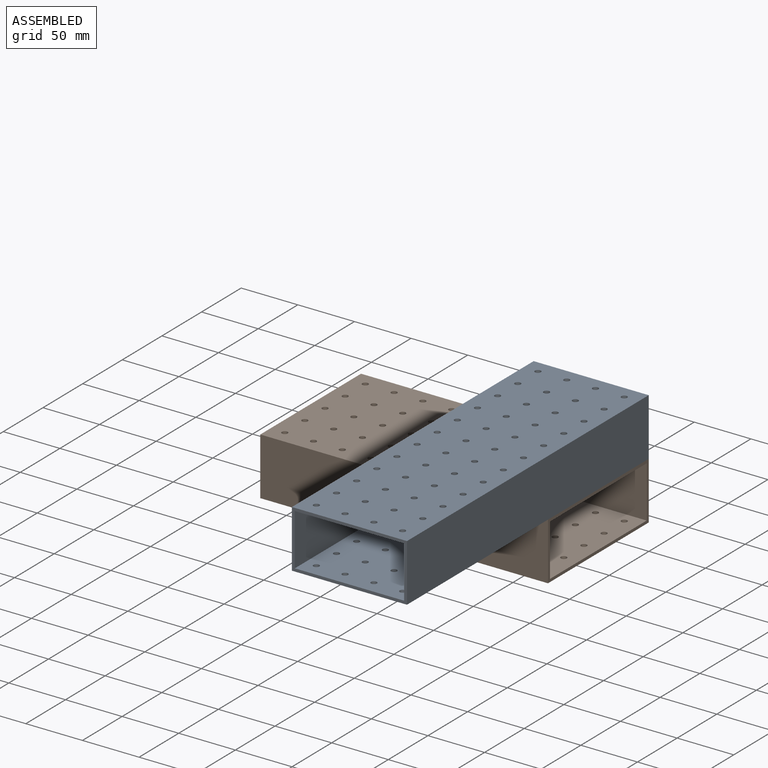
[diagram: assembled view]
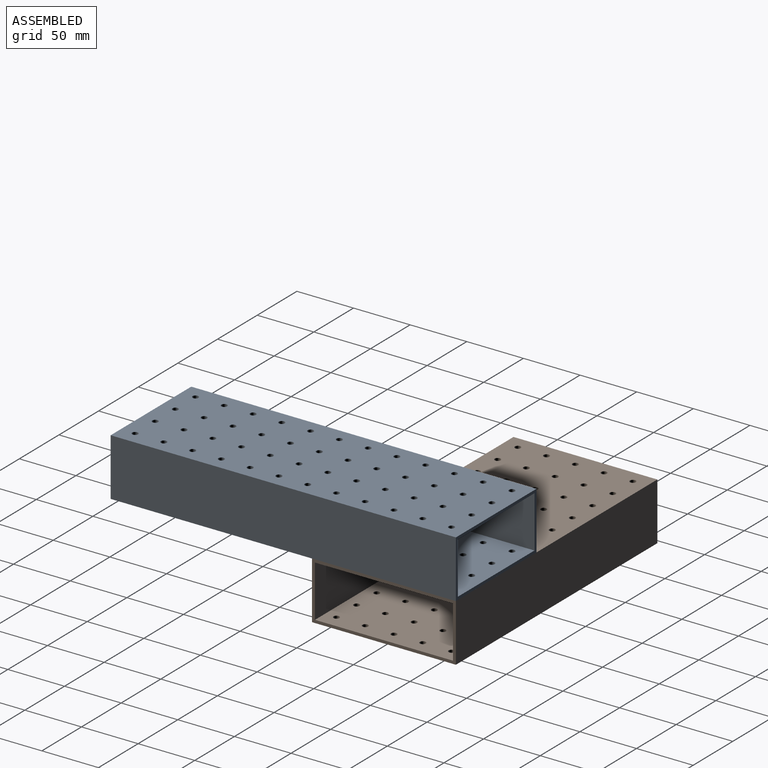
[diagram: assembled view, second angle]
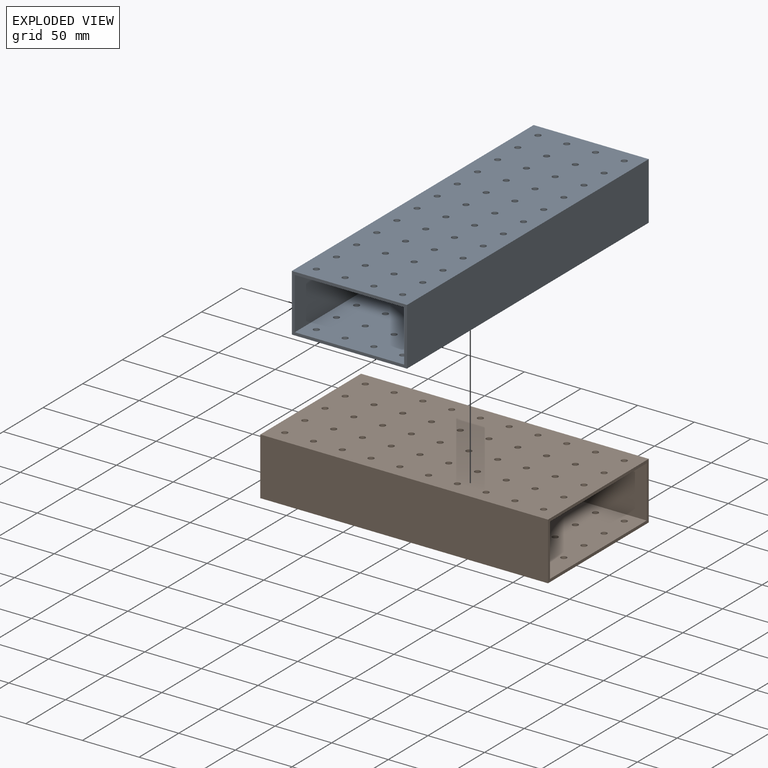
[diagram: exploded view]
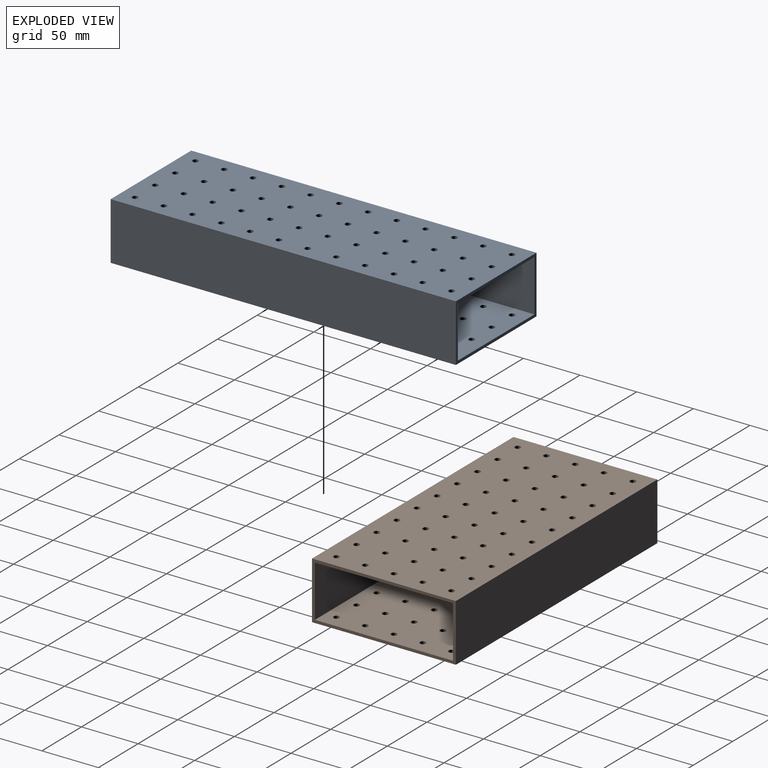
[diagram: exploded view, second angle]
ASSEMBLY  parts=2 mates=3
PART A: 106 faces, bbox 304.8x101.6x50.8 mm
  f0: plane 101.6x50.8mm, normal (-1,0,0), area 748.4mm2, adj f1,f3,f4,f5,f6,f7,f8,f9
  f1: plane 304.8x50.8mm, normal (0,-1,0), area 15483.8mm2, adj f0,f2,f4,f5
  f2: plane 101.6x50.8mm, normal (1,0,0), area 748.4mm2, adj f1,f3,f4,f5,f6,f7,f8,f9
  f3: plane 304.8x50.8mm, normal (0,1,0), area 15483.8mm2, adj f0,f2,f4,f5
  f4: plane 304.8x101.6mm, normal (0,0,1), area 29985mm2, adj f0,f1,f2,f3,f10,f12,f14,f16
  f5: plane 304.8x101.6mm, normal (0,0,-1), area 29985mm2, adj f0,f1,f2,f3,f11,f13,f15,f17
  f6: plane 304.8x45.72mm, normal (0,-1,0), area 13935.5mm2, adj f0,f2,f7,f9
  f7: plane 304.8x96.52mm, normal (0,0,1), area 28436.7mm2, adj f0,f2,f6,f8,f11,f13,f15,f17
  f8: plane 304.8x45.72mm, normal (0,1,0), area 13935.5mm2, adj f0,f2,f7,f9
  f9: plane 304.8x96.52mm, normal (0,0,-1), area 28436.7mm2, adj f0,f2,f6,f8,f10,f12,f14,f16
  f10: cylinder r=2.55mm len=5.11mm, axis (0,0,1), area 40.7mm2, adj f4,f9
  f11: cylinder r=2.55mm len=5.11mm, axis (0,0,1), area 40.7mm2, adj f5,f7
  f12: cylinder r=2.55mm len=5.11mm, axis (0,0,1), area 40.7mm2, adj f4,f9
  f13: cylinder r=2.55mm len=5.11mm, axis (0,0,1), area 40.7mm2, adj f5,f7
  f14: cylinder r=2.55mm len=5.11mm, axis (0,0,1), area 40.7mm2, adj f4,f9
  f15: cylinder r=2.55mm len=5.11mm, axis (0,0,1), area 40.7mm2, adj f5,f7
  f16: cylinder r=2.55mm len=5.11mm, axis (0,0,1), area 40.7mm2, adj f4,f9
  f17: cylinder r=2.55mm len=5.11mm, axis (0,0,1), area 40.7mm2, adj f5,f7
  f18: cylinder r=2.55mm len=5.11mm, axis (0,0,1), area 40.7mm2, adj f4,f9
  f19: cylinder r=2.55mm len=5.11mm, axis (0,0,1), area 40.7mm2, adj f5,f7
  f20: cylinder r=2.55mm len=5.11mm, axis (0,0,1), area 40.7mm2, adj f4,f9
  f21: cylinder r=2.55mm len=5.11mm, axis (0,0,1), area 40.7mm2, adj f5,f7
  f22: cylinder r=2.55mm len=5.11mm, axis (0,0,1), area 40.7mm2, adj f4,f9
  f23: cylinder r=2.55mm len=5.11mm, axis (0,0,1), area 40.7mm2, adj f5,f7
  f24: cylinder r=2.55mm len=5.11mm, axis (0,0,1), area 40.7mm2, adj f4,f9
  f25: cylinder r=2.55mm len=5.11mm, axis (0,0,1), area 40.7mm2, adj f5,f7
  f26: cylinder r=2.55mm len=5.11mm, axis (0,0,1), area 40.7mm2, adj f4,f9
  f27: cylinder r=2.55mm len=5.11mm, axis (0,0,1), area 40.7mm2, adj f5,f7
  f28: cylinder r=2.55mm len=5.11mm, axis (0,0,1), area 40.7mm2, adj f4,f9
  f29: cylinder r=2.55mm len=5.11mm, axis (0,0,1), area 40.7mm2, adj f5,f7
  f30: cylinder r=2.55mm len=5.11mm, axis (0,0,1), area 40.7mm2, adj f4,f9
  f31: cylinder r=2.55mm len=5.11mm, axis (0,0,1), area 40.7mm2, adj f5,f7
  f32: cylinder r=2.55mm len=5.11mm, axis (0,0,1), area 40.7mm2, adj f4,f9
  f33: cylinder r=2.55mm len=5.11mm, axis (0,0,1), area 40.7mm2, adj f5,f7
  f34: cylinder r=2.55mm len=5.11mm, axis (0,0,1), area 40.7mm2, adj f4,f9
  f35: cylinder r=2.55mm len=5.11mm, axis (0,0,1), area 40.7mm2, adj f5,f7
  f36: cylinder r=2.55mm len=5.11mm, axis (0,0,1), area 40.7mm2, adj f4,f9
  f37: cylinder r=2.55mm len=5.11mm, axis (0,0,1), area 40.7mm2, adj f5,f7
  f38: cylinder r=2.55mm len=5.11mm, axis (0,0,1), area 40.7mm2, adj f4,f9
  f39: cylinder r=2.55mm len=5.11mm, axis (0,0,1), area 40.7mm2, adj f5,f7
  f40: cylinder r=2.55mm len=5.11mm, axis (0,0,1), area 40.7mm2, adj f4,f9
  f41: cylinder r=2.55mm len=5.11mm, axis (0,0,1), area 40.7mm2, adj f5,f7
  f42: cylinder r=2.55mm len=5.11mm, axis (0,0,1), area 40.7mm2, adj f4,f9
  f43: cylinder r=2.55mm len=5.11mm, axis (0,0,1), area 40.7mm2, adj f5,f7
  f44: cylinder r=2.55mm len=5.11mm, axis (0,0,1), area 40.7mm2, adj f4,f9
  f45: cylinder r=2.55mm len=5.11mm, axis (0,0,1), area 40.7mm2, adj f5,f7
  f46: cylinder r=2.55mm len=5.11mm, axis (0,0,1), area 40.7mm2, adj f4,f9
  f47: cylinder r=2.55mm len=5.11mm, axis (0,0,1), area 40.7mm2, adj f5,f7
  f48: cylinder r=2.55mm len=5.11mm, axis (0,0,1), area 40.7mm2, adj f4,f9
  f49: cylinder r=2.55mm len=5.11mm, axis (0,0,1), area 40.7mm2, adj f5,f7
  f50: cylinder r=2.55mm len=5.11mm, axis (0,0,1), area 40.7mm2, adj f4,f9
  f51: cylinder r=2.55mm len=5.11mm, axis (0,0,1), area 40.7mm2, adj f5,f7
  f52: cylinder r=2.55mm len=5.11mm, axis (0,0,1), area 40.7mm2, adj f4,f9
  f53: cylinder r=2.55mm len=5.11mm, axis (0,0,1), area 40.7mm2, adj f5,f7
  f54: cylinder r=2.55mm len=5.11mm, axis (0,0,1), area 40.7mm2, adj f4,f9
  f55: cylinder r=2.55mm len=5.11mm, axis (0,0,1), area 40.7mm2, adj f5,f7
  f56: cylinder r=2.55mm len=5.11mm, axis (0,0,1), area 40.7mm2, adj f4,f9
  f57: cylinder r=2.55mm len=5.11mm, axis (0,0,1), area 40.7mm2, adj f5,f7
  f58: cylinder r=2.55mm len=5.11mm, axis (0,0,1), area 40.7mm2, adj f4,f9
  f59: cylinder r=2.55mm len=5.11mm, axis (0,0,1), area 40.7mm2, adj f5,f7
  f60: cylinder r=2.55mm len=5.11mm, axis (0,0,1), area 40.7mm2, adj f4,f9
  f61: cylinder r=2.55mm len=5.11mm, axis (0,0,1), area 40.7mm2, adj f5,f7
  f62: cylinder r=2.55mm len=5.11mm, axis (0,0,1), area 40.7mm2, adj f4,f9
  f63: cylinder r=2.55mm len=5.11mm, axis (0,0,1), area 40.7mm2, adj f5,f7
  f64: cylinder r=2.55mm len=5.11mm, axis (0,0,1), area 40.7mm2, adj f4,f9
  f65: cylinder r=2.55mm len=5.11mm, axis (0,0,1), area 40.7mm2, adj f5,f7
  f66: cylinder r=2.55mm len=5.11mm, axis (0,0,1), area 40.7mm2, adj f4,f9
  f67: cylinder r=2.55mm len=5.11mm, axis (0,0,1), area 40.7mm2, adj f5,f7
  f68: cylinder r=2.55mm len=5.11mm, axis (0,0,1), area 40.7mm2, adj f4,f9
  f69: cylinder r=2.55mm len=5.11mm, axis (0,0,1), area 40.7mm2, adj f5,f7
  f70: cylinder r=2.55mm len=5.11mm, axis (0,0,1), area 40.7mm2, adj f4,f9
  f71: cylinder r=2.55mm len=5.11mm, axis (0,0,1), area 40.7mm2, adj f5,f7
  f72: cylinder r=2.55mm len=5.11mm, axis (0,0,1), area 40.7mm2, adj f4,f9
  f73: cylinder r=2.55mm len=5.11mm, axis (0,0,1), area 40.7mm2, adj f5,f7
  f74: cylinder r=2.55mm len=5.11mm, axis (0,0,1), area 40.7mm2, adj f4,f9
  f75: cylinder r=2.55mm len=5.11mm, axis (0,0,1), area 40.7mm2, adj f5,f7
  f76: cylinder r=2.55mm len=5.11mm, axis (0,0,1), area 40.7mm2, adj f4,f9
  f77: cylinder r=2.55mm len=5.11mm, axis (0,0,1), area 40.7mm2, adj f5,f7
  f78: cylinder r=2.55mm len=5.11mm, axis (0,0,1), area 40.7mm2, adj f4,f9
  f79: cylinder r=2.55mm len=5.11mm, axis (0,0,1), area 40.7mm2, adj f5,f7
  f80: cylinder r=2.55mm len=5.11mm, axis (0,0,1), area 40.7mm2, adj f4,f9
  f81: cylinder r=2.55mm len=5.11mm, axis (0,0,1), area 40.7mm2, adj f5,f7
  f82: cylinder r=2.55mm len=5.11mm, axis (0,0,1), area 40.7mm2, adj f4,f9
  f83: cylinder r=2.55mm len=5.11mm, axis (0,0,1), area 40.7mm2, adj f5,f7
  f84: cylinder r=2.55mm len=5.11mm, axis (0,0,1), area 40.7mm2, adj f4,f9
  f85: cylinder r=2.55mm len=5.11mm, axis (0,0,1), area 40.7mm2, adj f5,f7
  f86: cylinder r=2.55mm len=5.11mm, axis (0,0,1), area 40.7mm2, adj f4,f9
  f87: cylinder r=2.55mm len=5.11mm, axis (0,0,1), area 40.7mm2, adj f5,f7
  f88: cylinder r=2.55mm len=5.11mm, axis (0,0,1), area 40.7mm2, adj f4,f9
  f89: cylinder r=2.55mm len=5.11mm, axis (0,0,1), area 40.7mm2, adj f5,f7
  f90: cylinder r=2.55mm len=5.11mm, axis (0,0,1), area 40.7mm2, adj f4,f9
  f91: cylinder r=2.55mm len=5.11mm, axis (0,0,1), area 40.7mm2, adj f5,f7
  f92: cylinder r=2.55mm len=5.11mm, axis (0,0,1), area 40.7mm2, adj f4,f9
  f93: cylinder r=2.55mm len=5.11mm, axis (0,0,1), area 40.7mm2, adj f5,f7
  f94: cylinder r=2.55mm len=5.11mm, axis (0,0,1), area 40.7mm2, adj f4,f9
  f95: cylinder r=2.55mm len=5.11mm, axis (0,0,1), area 40.7mm2, adj f5,f7
  f96: cylinder r=2.55mm len=5.11mm, axis (0,0,1), area 40.7mm2, adj f4,f9
  f97: cylinder r=2.55mm len=5.11mm, axis (0,0,1), area 40.7mm2, adj f5,f7
  f98: cylinder r=2.55mm len=5.11mm, axis (0,0,1), area 40.7mm2, adj f4,f9
  f99: cylinder r=2.55mm len=5.11mm, axis (0,0,1), area 40.7mm2, adj f5,f7
  f100: cylinder r=2.55mm len=5.11mm, axis (0,0,1), area 40.7mm2, adj f4,f9
  f101: cylinder r=2.55mm len=5.11mm, axis (0,0,1), area 40.7mm2, adj f5,f7
  f102: cylinder r=2.55mm len=5.11mm, axis (0,0,1), area 40.7mm2, adj f4,f9
  f103: cylinder r=2.55mm len=5.11mm, axis (0,0,1), area 40.7mm2, adj f5,f7
  f104: cylinder r=2.55mm len=5.11mm, axis (0,0,1), area 40.7mm2, adj f4,f9
  f105: cylinder r=2.55mm len=5.11mm, axis (0,0,1), area 40.7mm2, adj f5,f7
PART B: 110 faces, bbox 254x127x50.8 mm
  f0: plane 127x50.8mm, normal (-1,0,0), area 877.4mm2, adj f1,f3,f4,f5,f6,f7,f8,f9
  f1: plane 254x50.8mm, normal (0,-1,0), area 12903.2mm2, adj f0,f2,f4,f5
  f2: plane 127x50.8mm, normal (1,0,0), area 877.4mm2, adj f1,f3,f4,f5,f6,f7,f8,f9
  f3: plane 254x50.8mm, normal (0,1,0), area 12903.2mm2, adj f0,f2,f4,f5
  f4: plane 254x127mm, normal (0,0,1), area 31234.4mm2, adj f0,f1,f2,f3,f10,f12,f14,f16
  f5: plane 254x127mm, normal (0,0,-1), area 31234.4mm2, adj f0,f1,f2,f3,f11,f13,f15,f17
  f6: plane 254x45.72mm, normal (0,1,0), area 11612.9mm2, adj f0,f2,f7,f9
  f7: plane 254x121.92mm, normal (0,0,1), area 29944.1mm2, adj f0,f2,f6,f8,f11,f13,f15,f17
  f8: plane 254x45.72mm, normal (0,-1,0), area 11612.9mm2, adj f0,f2,f7,f9
  f9: plane 254x121.92mm, normal (0,0,-1), area 29944.1mm2, adj f0,f2,f6,f8,f10,f12,f14,f16
  f10: cylinder r=2.55mm len=5.11mm, axis (0,0,1), area 40.7mm2, adj f4,f9
  f11: cylinder r=2.55mm len=5.11mm, axis (0,0,1), area 40.7mm2, adj f5,f7
  f12: cylinder r=2.55mm len=5.11mm, axis (0,0,1), area 40.7mm2, adj f4,f9
  f13: cylinder r=2.55mm len=5.11mm, axis (0,0,1), area 40.7mm2, adj f5,f7
  f14: cylinder r=2.55mm len=5.11mm, axis (0,0,1), area 40.7mm2, adj f4,f9
  f15: cylinder r=2.55mm len=5.11mm, axis (0,0,1), area 40.7mm2, adj f5,f7
  f16: cylinder r=2.55mm len=5.11mm, axis (0,0,1), area 40.7mm2, adj f4,f9
  f17: cylinder r=2.55mm len=5.11mm, axis (0,0,1), area 40.7mm2, adj f5,f7
  f18: cylinder r=2.55mm len=5.11mm, axis (0,0,1), area 40.7mm2, adj f4,f9
  f19: cylinder r=2.55mm len=5.11mm, axis (0,0,1), area 40.7mm2, adj f5,f7
  f20: cylinder r=2.55mm len=5.11mm, axis (0,0,1), area 40.7mm2, adj f4,f9
  f21: cylinder r=2.55mm len=5.11mm, axis (0,0,1), area 40.7mm2, adj f5,f7
  f22: cylinder r=2.55mm len=5.11mm, axis (0,0,1), area 40.7mm2, adj f4,f9
  f23: cylinder r=2.55mm len=5.11mm, axis (0,0,1), area 40.7mm2, adj f5,f7
  f24: cylinder r=2.55mm len=5.11mm, axis (0,0,1), area 40.7mm2, adj f4,f9
  f25: cylinder r=2.55mm len=5.11mm, axis (0,0,1), area 40.7mm2, adj f5,f7
  f26: cylinder r=2.55mm len=5.11mm, axis (0,0,1), area 40.7mm2, adj f4,f9
  f27: cylinder r=2.55mm len=5.11mm, axis (0,0,1), area 40.7mm2, adj f5,f7
  f28: cylinder r=2.55mm len=5.11mm, axis (0,0,1), area 40.7mm2, adj f4,f9
  f29: cylinder r=2.55mm len=5.11mm, axis (0,0,1), area 40.7mm2, adj f5,f7
  f30: cylinder r=2.55mm len=5.11mm, axis (0,0,1), area 40.7mm2, adj f4,f9
  f31: cylinder r=2.55mm len=5.11mm, axis (0,0,1), area 40.7mm2, adj f5,f7
  f32: cylinder r=2.55mm len=5.11mm, axis (0,0,1), area 40.7mm2, adj f4,f9
  f33: cylinder r=2.55mm len=5.11mm, axis (0,0,1), area 40.7mm2, adj f5,f7
  f34: cylinder r=2.55mm len=5.11mm, axis (0,0,1), area 40.7mm2, adj f4,f9
  f35: cylinder r=2.55mm len=5.11mm, axis (0,0,1), area 40.7mm2, adj f5,f7
  f36: cylinder r=2.55mm len=5.11mm, axis (0,0,1), area 40.7mm2, adj f4,f9
  f37: cylinder r=2.55mm len=5.11mm, axis (0,0,1), area 40.7mm2, adj f5,f7
  f38: cylinder r=2.55mm len=5.11mm, axis (0,0,1), area 40.7mm2, adj f4,f9
  f39: cylinder r=2.55mm len=5.11mm, axis (0,0,1), area 40.7mm2, adj f5,f7
  f40: cylinder r=2.55mm len=5.11mm, axis (0,0,1), area 40.7mm2, adj f4,f9
  f41: cylinder r=2.55mm len=5.11mm, axis (0,0,1), area 40.7mm2, adj f5,f7
  f42: cylinder r=2.55mm len=5.11mm, axis (0,0,1), area 40.7mm2, adj f4,f9
  f43: cylinder r=2.55mm len=5.11mm, axis (0,0,1), area 40.7mm2, adj f5,f7
  f44: cylinder r=2.55mm len=5.11mm, axis (0,0,1), area 40.7mm2, adj f4,f9
  f45: cylinder r=2.55mm len=5.11mm, axis (0,0,1), area 40.7mm2, adj f5,f7
  f46: cylinder r=2.55mm len=5.11mm, axis (0,0,1), area 40.7mm2, adj f4,f9
  f47: cylinder r=2.55mm len=5.11mm, axis (0,0,1), area 40.7mm2, adj f5,f7
  f48: cylinder r=2.55mm len=5.11mm, axis (0,0,1), area 40.7mm2, adj f4,f9
  f49: cylinder r=2.55mm len=5.11mm, axis (0,0,1), area 40.7mm2, adj f5,f7
  f50: cylinder r=2.55mm len=5.11mm, axis (0,0,1), area 40.7mm2, adj f4,f9
  f51: cylinder r=2.55mm len=5.11mm, axis (0,0,1), area 40.7mm2, adj f5,f7
  f52: cylinder r=2.55mm len=5.11mm, axis (0,0,1), area 40.7mm2, adj f4,f9
  f53: cylinder r=2.55mm len=5.11mm, axis (0,0,1), area 40.7mm2, adj f5,f7
  f54: cylinder r=2.55mm len=5.11mm, axis (0,0,1), area 40.7mm2, adj f4,f9
  f55: cylinder r=2.55mm len=5.11mm, axis (0,0,1), area 40.7mm2, adj f5,f7
  f56: cylinder r=2.55mm len=5.11mm, axis (0,0,1), area 40.7mm2, adj f4,f9
  f57: cylinder r=2.55mm len=5.11mm, axis (0,0,1), area 40.7mm2, adj f5,f7
  f58: cylinder r=2.55mm len=5.11mm, axis (0,0,1), area 40.7mm2, adj f4,f9
  f59: cylinder r=2.55mm len=5.11mm, axis (0,0,1), area 40.7mm2, adj f5,f7
  f60: cylinder r=2.55mm len=5.11mm, axis (0,0,1), area 40.7mm2, adj f4,f9
  f61: cylinder r=2.55mm len=5.11mm, axis (0,0,1), area 40.7mm2, adj f5,f7
  f62: cylinder r=2.55mm len=5.11mm, axis (0,0,1), area 40.7mm2, adj f4,f9
  f63: cylinder r=2.55mm len=5.11mm, axis (0,0,1), area 40.7mm2, adj f5,f7
  f64: cylinder r=2.55mm len=5.11mm, axis (0,0,1), area 40.7mm2, adj f4,f9
  f65: cylinder r=2.55mm len=5.11mm, axis (0,0,1), area 40.7mm2, adj f5,f7
  f66: cylinder r=2.55mm len=5.11mm, axis (0,0,1), area 40.7mm2, adj f4,f9
  f67: cylinder r=2.55mm len=5.11mm, axis (0,0,1), area 40.7mm2, adj f5,f7
  f68: cylinder r=2.55mm len=5.11mm, axis (0,0,1), area 40.7mm2, adj f4,f9
  f69: cylinder r=2.55mm len=5.11mm, axis (0,0,1), area 40.7mm2, adj f5,f7
  f70: cylinder r=2.55mm len=5.11mm, axis (0,0,1), area 40.7mm2, adj f4,f9
  f71: cylinder r=2.55mm len=5.11mm, axis (0,0,1), area 40.7mm2, adj f5,f7
  f72: cylinder r=2.55mm len=5.11mm, axis (0,0,1), area 40.7mm2, adj f4,f9
  f73: cylinder r=2.55mm len=5.11mm, axis (0,0,1), area 40.7mm2, adj f5,f7
  f74: cylinder r=2.55mm len=5.11mm, axis (0,0,1), area 40.7mm2, adj f4,f9
  f75: cylinder r=2.55mm len=5.11mm, axis (0,0,1), area 40.7mm2, adj f5,f7
  f76: cylinder r=2.55mm len=5.11mm, axis (0,0,1), area 40.7mm2, adj f4,f9
  f77: cylinder r=2.55mm len=5.11mm, axis (0,0,1), area 40.7mm2, adj f5,f7
  f78: cylinder r=2.55mm len=5.11mm, axis (0,0,1), area 40.7mm2, adj f4,f9
  f79: cylinder r=2.55mm len=5.11mm, axis (0,0,1), area 40.7mm2, adj f5,f7
  f80: cylinder r=2.55mm len=5.11mm, axis (0,0,1), area 40.7mm2, adj f4,f9
  f81: cylinder r=2.55mm len=5.11mm, axis (0,0,1), area 40.7mm2, adj f5,f7
  f82: cylinder r=2.55mm len=5.11mm, axis (0,0,1), area 40.7mm2, adj f4,f9
  f83: cylinder r=2.55mm len=5.11mm, axis (0,0,1), area 40.7mm2, adj f5,f7
  f84: cylinder r=2.55mm len=5.11mm, axis (0,0,1), area 40.7mm2, adj f4,f9
  f85: cylinder r=2.55mm len=5.11mm, axis (0,0,1), area 40.7mm2, adj f5,f7
  f86: cylinder r=2.55mm len=5.11mm, axis (0,0,1), area 40.7mm2, adj f4,f9
  f87: cylinder r=2.55mm len=5.11mm, axis (0,0,1), area 40.7mm2, adj f5,f7
  f88: cylinder r=2.55mm len=5.11mm, axis (0,0,1), area 40.7mm2, adj f4,f9
  f89: cylinder r=2.55mm len=5.11mm, axis (0,0,1), area 40.7mm2, adj f5,f7
  f90: cylinder r=2.55mm len=5.11mm, axis (0,0,1), area 40.7mm2, adj f4,f9
  f91: cylinder r=2.55mm len=5.11mm, axis (0,0,1), area 40.7mm2, adj f5,f7
  f92: cylinder r=2.55mm len=5.11mm, axis (0,0,1), area 40.7mm2, adj f4,f9
  f93: cylinder r=2.55mm len=5.11mm, axis (0,0,1), area 40.7mm2, adj f5,f7
  f94: cylinder r=2.55mm len=5.11mm, axis (0,0,1), area 40.7mm2, adj f4,f9
  f95: cylinder r=2.55mm len=5.11mm, axis (0,0,1), area 40.7mm2, adj f5,f7
  f96: cylinder r=2.55mm len=5.11mm, axis (0,0,1), area 40.7mm2, adj f4,f9
  f97: cylinder r=2.55mm len=5.11mm, axis (0,0,1), area 40.7mm2, adj f5,f7
  f98: cylinder r=2.55mm len=5.11mm, axis (0,0,1), area 40.7mm2, adj f4,f9
  f99: cylinder r=2.55mm len=5.11mm, axis (0,0,1), area 40.7mm2, adj f5,f7
  f100: cylinder r=2.55mm len=5.11mm, axis (0,0,1), area 40.7mm2, adj f4,f9
  f101: cylinder r=2.55mm len=5.11mm, axis (0,0,1), area 40.7mm2, adj f5,f7
  f102: cylinder r=2.55mm len=5.11mm, axis (0,0,1), area 40.7mm2, adj f4,f9
  f103: cylinder r=2.55mm len=5.11mm, axis (0,0,1), area 40.7mm2, adj f5,f7
  f104: cylinder r=2.55mm len=5.11mm, axis (0,0,1), area 40.7mm2, adj f4,f9
  f105: cylinder r=2.55mm len=5.11mm, axis (0,0,1), area 40.7mm2, adj f5,f7
  f106: cylinder r=2.55mm len=5.11mm, axis (0,0,1), area 40.7mm2, adj f4,f9
  f107: cylinder r=2.55mm len=5.11mm, axis (0,0,1), area 40.7mm2, adj f5,f7
  f108: cylinder r=2.55mm len=5.11mm, axis (0,0,1), area 40.7mm2, adj f4,f9
  f109: cylinder r=2.55mm len=5.11mm, axis (0,0,1), area 40.7mm2, adj f5,f7
PLACE A rot(axis=(0,0,1),90deg) t=(-616.73,285.66,77.13)mm
PLACE B rot(axis=(1,0,0),0deg) t=(-675.76,332.49,26.33)mm
MATE cylindrical B.f66 <-> A.f10  axis (0,0,-1) through (-558.35,430.89,74.59)mm
MATE planar A.f16 <-> B.f78  axis (0,0,-1) through (-583.75,380.09,77.13)mm
MATE cylindrical A.f32 <-> B.f14  axis (0,0,-1) through (-634.55,430.89,77.13)mm
